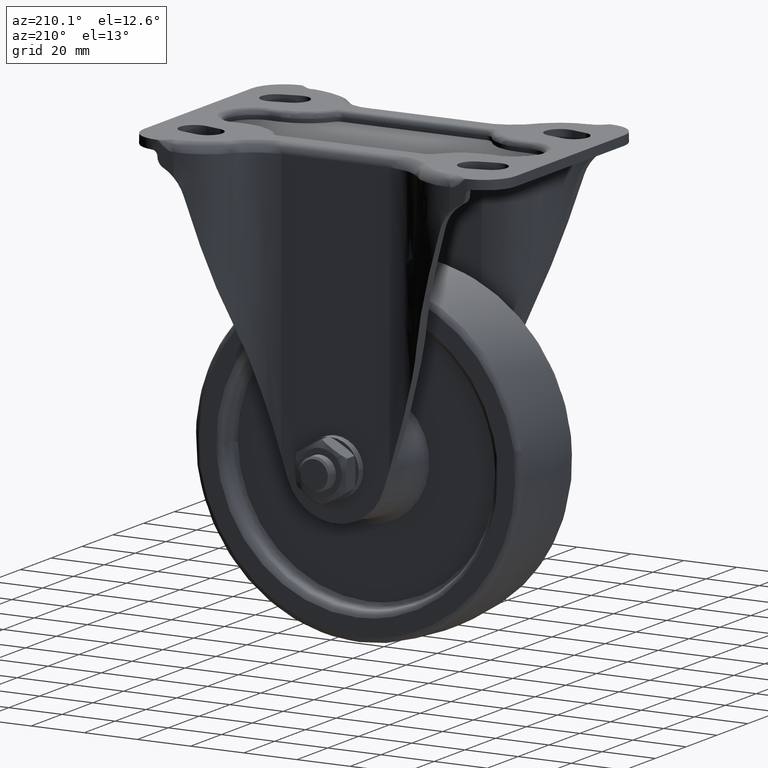
[diagram: clean part render]
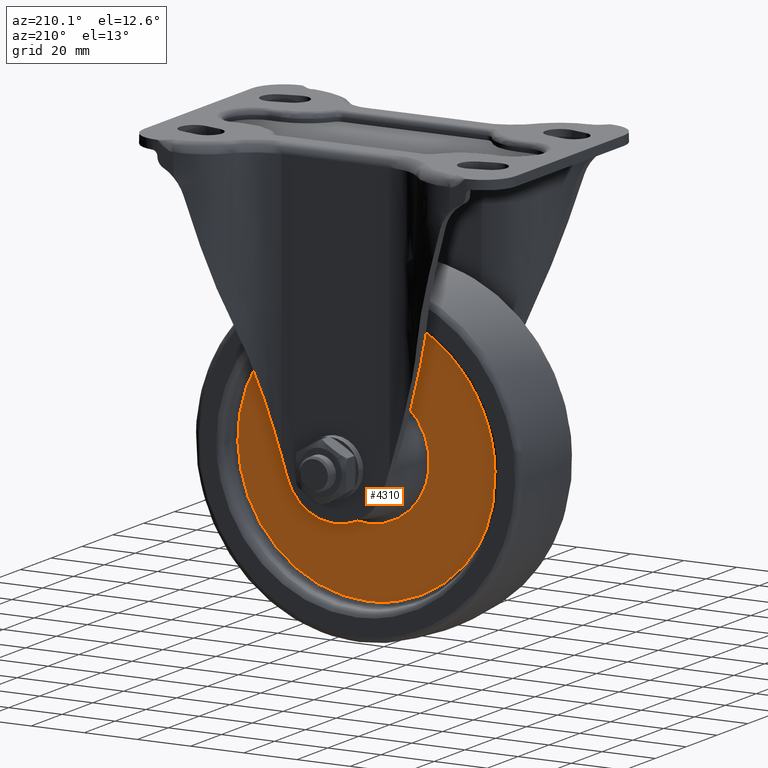
[diagram: same view with one face highlighted and labeled with its STEP entity id]
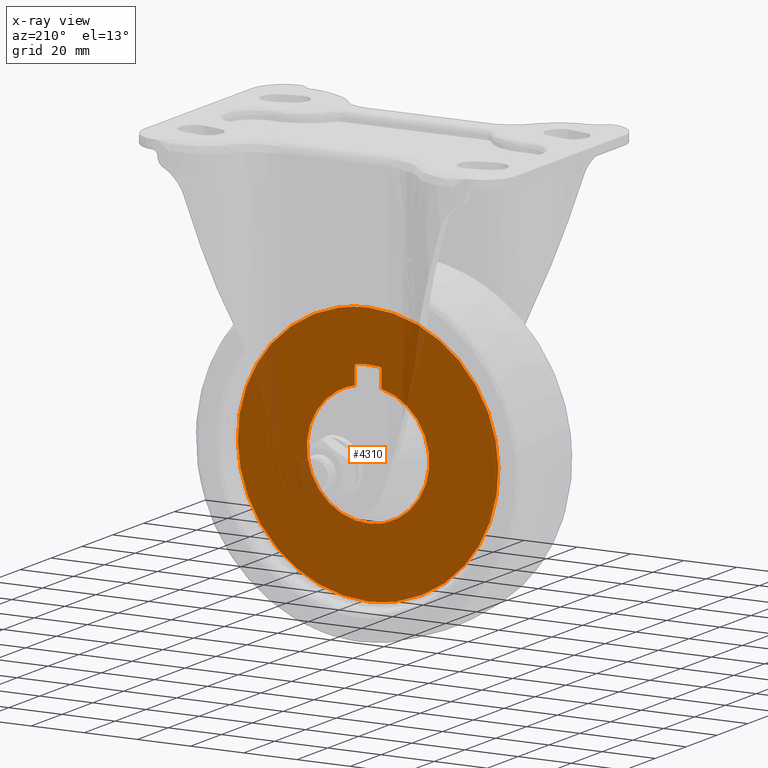
[diagram: x-ray of the same camera — body ghosted, the highlighted face saturated]
A machine part, auxiliary view. The second image highlights one B-rep face of the part: STEP entity #4310.
The next image is the same camera in x-ray: the body ghosted, the highlighted face saturated — about 8% of this face is hidden behind the body in this view.
In plain terms, the highlighted face is a freeform B-spline surface patch.
Its self-contained STEP definition (entity closure, byte-faithful):
#3851=CARTESIAN_POINT('',(-48.984511301841550,10.319397000000000,1.231367326071038));
#3852=VERTEX_POINT('',#3851);
#3853=CARTESIAN_POINT('',(0.0,10.319397000000000,-48.999992999999897));
#3854=VERTEX_POINT('',#3853);
#3855=CARTESIAN_POINT('',(-48.984511301841550,10.319397000000002,1.231367326071038));
#3856=CARTESIAN_POINT('',(-48.999986022415428,10.319396999999999,0.615777398971663));
#3857=CARTESIAN_POINT('',(-48.999986022273717,10.319397000000000,-0.000006999440185));
#3858=CARTESIAN_POINT('',(-48.999986010996800,10.319397000000000,-48.999992999723460));
#3859=CARTESIAN_POINT('',(0.0,10.319397000000000,-48.999992999999897));
#3867=(BOUNDED_CURVE()B_SPLINE_CURVE(2,(#3855,#3856,#3857,#3858,#3859),.UNSPECIFIED.,.F.,.U.)B_SPLINE_CURVE_WITH_KNOTS((3,2,3),(0.745579891767657,0.750000000000000,1.0),.UNSPECIFIED.)CURVE()GEOMETRIC_REPRESENTATION_ITEM()RATIONAL_B_SPLINE_CURVE((0.989826157676716,0.994821521089301,1.0,0.707106781186547,1.0))REPRESENTATION_ITEM(''));
#3868=EDGE_CURVE('',#3852,#3854,#3867,.T.);
#3870=CARTESIAN_POINT('',(48.984511301841550,10.319397000000000,-1.231381326071215));
#3871=VERTEX_POINT('',#3870);
#3872=CARTESIAN_POINT('',(0.0,10.319397000000000,-48.999992999999897));
#3873=CARTESIAN_POINT('',(47.783702291050865,10.319396999999999,-48.999993000283375));
#3874=CARTESIAN_POINT('',(48.984511301841550,10.319396999999999,-1.231381326071215));
#3882=(BOUNDED_CURVE()B_SPLINE_CURVE(2,(#3872,#3873,#3874),.UNSPECIFIED.,.F.,.U.)B_SPLINE_CURVE_WITH_KNOTS((3,3),(0.0,0.245579891767657),.UNSPECIFIED.)CURVE()GEOMETRIC_REPRESENTATION_ITEM()RATIONAL_B_SPLINE_CURVE((1.0,0.712285260097246,0.989826157676716))REPRESENTATION_ITEM(''));
#3883=EDGE_CURVE('',#3854,#3871,#3882,.T.);
#3946=CARTESIAN_POINT('',(0.0,10.319397000000000,48.999978999999712));
#3947=VERTEX_POINT('',#3946);
#3948=CARTESIAN_POINT('',(0.0,10.319397000000000,48.999978999999712));
#3949=CARTESIAN_POINT('',(-47.783702291050851,10.319397000000000,48.999979000283176));
#3950=CARTESIAN_POINT('',(-48.984511301841550,10.319397000000002,1.231367326071038));
#3958=(BOUNDED_CURVE()B_SPLINE_CURVE(2,(#3948,#3949,#3950),.UNSPECIFIED.,.F.,.U.)B_SPLINE_CURVE_WITH_KNOTS((3,3),(0.500000000000000,0.745579891767657),.UNSPECIFIED.)CURVE()GEOMETRIC_REPRESENTATION_ITEM()RATIONAL_B_SPLINE_CURVE((1.0,0.712285260097246,0.989826157676716))REPRESENTATION_ITEM(''));
#3959=EDGE_CURVE('',#3947,#3852,#3958,.T.);
#3966=CARTESIAN_POINT('',(48.984511301841550,10.319396999999999,-1.231381326071215));
#3967=CARTESIAN_POINT('',(48.999986022415435,10.319396999999999,-0.615791398971855));
#3968=CARTESIAN_POINT('',(48.999986022273717,10.319397000000000,-0.000007000560023));
#3969=CARTESIAN_POINT('',(48.999986010996800,10.319396999999999,48.999978999723247));
#3970=CARTESIAN_POINT('',(0.0,10.319397000000000,48.999978999999712));
#3978=(BOUNDED_CURVE()B_SPLINE_CURVE(2,(#3966,#3967,#3968,#3969,#3970),.UNSPECIFIED.,.F.,.U.)B_SPLINE_CURVE_WITH_KNOTS((3,2,3),(0.245579891767657,0.250000000000000,0.500000000000000),.UNSPECIFIED.)CURVE()GEOMETRIC_REPRESENTATION_ITEM()RATIONAL_B_SPLINE_CURVE((0.989826157676716,0.994821521089301,1.0,0.707106781186547,1.0))REPRESENTATION_ITEM(''));
#3979=EDGE_CURVE('',#3871,#3947,#3978,.T.);
#4025=CARTESIAN_POINT('',(-5.0,10.319396999999981,22.481966345770299));
#4026=VERTEX_POINT('',#4025);
#4027=CARTESIAN_POINT('',(5.0,10.319396999999981,22.481966345770299));
#4028=VERTEX_POINT('',#4027);
#4029=CARTESIAN_POINT('',(-5.0,10.319396999999981,22.481966345770299));
#4030=CARTESIAN_POINT('',(-5.085387878252790,10.319396999999981,22.462210359035119));
#4031=CARTESIAN_POINT('',(-5.213693063857245,10.319396999999981,22.433709892424190));
#4032=CARTESIAN_POINT('',(-6.578155796779152,10.319397000000000,22.109839334195140));
#4033=CARTESIAN_POINT('',(-8.540818207425934,10.319396999999940,21.461998359754311));
#4034=CARTESIAN_POINT('',(-11.622457636026899,10.319397000000031,19.973280816300068));
#4035=CARTESIAN_POINT('',(-13.451142400852421,10.319396999999920,18.749516081109380));
#4036=CARTESIAN_POINT('',(-14.605867450475380,10.319397000000000,17.807777145571631));
#4037=CARTESIAN_POINT('',(-14.706821596219291,10.319396999999970,17.723564899808991));
#4038=CARTESIAN_POINT('',(-14.841903140956100,10.319397000000009,17.611841886067030));
#4039=CARTESIAN_POINT('',(-16.077956958325750,10.319396999999890,16.562230134875350));
#4040=CARTESIAN_POINT('',(-17.905369594125109,10.319396999999990,14.654322907823950));
#4041=CARTESIAN_POINT('',(-19.835593529014531,10.319396999999981,11.823372893310371));
#4042=CARTESIAN_POINT('',(-21.255004209016619,10.319396999999970,9.048691311566437));
#4043=CARTESIAN_POINT('',(-22.423413558723521,10.319396999999990,5.732090348997822));
#4044=CARTESIAN_POINT('',(-22.863817172577320,10.319396999999990,3.127883004478196));
#4045=CARTESIAN_POINT('',(-22.972674567379318,10.319396999999981,1.641820032131662));
#4046=CARTESIAN_POINT('',(-22.978149507839209,10.319396999999981,1.554336098784755));
#4047=CARTESIAN_POINT('',(-22.987742020184431,10.319396999999981,1.423198809027324));
#4048=CARTESIAN_POINT('',(-22.994634649496820,10.319396999999981,1.291893901346293));
#4049=CARTESIAN_POINT('',(-23.013921640739419,10.319396999999970,0.941819708415359));
#4050=CARTESIAN_POINT('',(-23.025414809194618,10.319396999999990,0.591363971673138));
#4051=CARTESIAN_POINT('',(-23.030260358920710,10.319396999999981,0.240803172303306));
#4052=CARTESIAN_POINT('',(-23.030476036473079,10.319396999999981,0.109332316829716));
#4053=CARTESIAN_POINT('',(-23.031493707214519,10.319396999999981,-0.022138341027318));
#4054=CARTESIAN_POINT('',(-23.030005973231152,10.319396999999990,-0.372731988136505));
#4055=CARTESIAN_POINT('',(-23.021818019498429,10.319396999999981,-0.723285440606827));
#4056=CARTESIAN_POINT('',(-23.005893724133820,10.319396999999981,-1.073532598914996));
#4057=CARTESIAN_POINT('',(-22.999957428642588,10.319396999999960,-1.204868098159805));
#4058=CARTESIAN_POINT('',(-22.946672157476499,10.319397000000130,-2.167500293492353));
#4059=CARTESIAN_POINT('',(-22.835749040928299,10.319396999999700,-3.126761635757232));
#4060=CARTESIAN_POINT('',(-22.667924397624230,10.319397000000000,-4.076146411155994));
#4061=CARTESIAN_POINT('',(-22.643524306719680,10.319396999999981,-4.205330570320893));
#4062=CARTESIAN_POINT('',(-22.619927648662440,10.319396999999981,-4.334670036394797));
#4063=CARTESIAN_POINT('',(-22.536067230652240,10.319396999999970,-4.764817809044577));
#4064=CARTESIAN_POINT('',(-22.441437565092471,10.319397000000000,-5.192843148538842));
#4065=CARTESIAN_POINT('',(-22.335228144178760,10.319396999999981,-5.618032775469392));
#4066=CARTESIAN_POINT('',(-22.314010329526980,10.319396999999981,-5.703080736037213));
#4067=CARTESIAN_POINT('',(-22.171910645120381,10.319397000000000,-6.254807718150488));
#4068=CARTESIAN_POINT('',(-22.010855487806761,10.319396999999981,-6.801635123550097));
#4069=CARTESIAN_POINT('',(-21.815945253803690,10.319396999999981,-7.383400893766641));
#4070=CARTESIAN_POINT('',(-21.772749832130511,10.319396999999981,-7.507569133948926));
#4071=CARTESIAN_POINT('',(-21.715968581095119,10.319396999999981,-7.673420715178583));
#4072=CARTESIAN_POINT('',(-21.656882861308159,10.319396999999981,-7.838483042006676));
#4073=CARTESIAN_POINT('',(-21.595667708541079,10.319396999999981,-8.002749471605778));
#4074=CARTESIAN_POINT('',(-21.550298959765030,10.319396999999981,-8.126143448985285));
#4075=CARTESIAN_POINT('',(-21.160737661946900,10.319396999999990,-9.150180580126298));
#4076=CARTESIAN_POINT('',(-20.701066936175192,10.319396999999981,-10.147301277188051));
#4077=CARTESIAN_POINT('',(-20.175440191662410,10.319396999999981,-11.108614343984859));
#4078=CARTESIAN_POINT('',(-20.111057803980891,10.319397000000020,-11.223239173327689));
#4079=CARTESIAN_POINT('',(-20.025889442687291,10.319396999999739,-11.376458131663149));
#4080=CARTESIAN_POINT('',(-19.263135153509111,10.319397000000651,-12.707290233369660));
#4081=CARTESIAN_POINT('',(-17.963513623751730,10.319396999999590,-14.537118337972990));
#4082=CARTESIAN_POINT('',(-15.642514350982760,10.319397000000709,-16.992184498985299));
#4083=CARTESIAN_POINT('',(-13.157108320700280,10.319396999999791,-19.022760909032790));
#4084=CARTESIAN_POINT('',(-10.950825606138020,10.319396999999940,-20.301324032533131));
#4085=CARTESIAN_POINT('',(-9.721400025374901,10.319397000000000,-20.879533405309999));
#4086=CARTESIAN_POINT('',(-9.561796878505025,10.319396999999981,-20.952037613935151));
#4087=CARTESIAN_POINT('',(-9.442346509916886,10.319396999999981,-21.006951016560912));
#4088=CARTESIAN_POINT('',(-8.561787640619023,10.319396999999981,-21.399628607863139));
#4089=CARTESIAN_POINT('',(-7.698949925337293,10.319396999999981,-21.724056267608869));
#4090=CARTESIAN_POINT('',(-6.820415811721115,10.319396999999981,-21.998240976886450));
#4091=CARTESIAN_POINT('',(-6.736461432446616,10.319396999999981,-22.023434588719919));
#4092=CARTESIAN_POINT('',(-6.610941342153742,10.319396999999981,-22.062582804533051));
#4093=CARTESIAN_POINT('',(-6.484576630510743,10.319396999999981,-22.098912074927320));
#4094=CARTESIAN_POINT('',(-6.400601600329940,10.319396999999981,-22.124035549714190));
#4095=CARTESIAN_POINT('',(-5.305445384798471,10.319397000000020,-22.438661550428151));
#4096=CARTESIAN_POINT('',(-4.187814688422342,10.319396999999940,-22.674956170331370));
#4097=CARTESIAN_POINT('',(-3.015176477750201,10.319396999999981,-22.833277618409848));
#4098=CARTESIAN_POINT('',(-2.884692110910771,10.319396999999981,-22.849341967039489));
#4099=CARTESIAN_POINT('',(-2.797777032766177,10.319396999999981,-22.860728890155048));
#4100=CARTESIAN_POINT('',(-2.058111653162837,10.319396999999970,-22.949847820064669));
#4101=CARTESIAN_POINT('',(-1.314367329747214,10.319397000000039,-23.005188927102971));
#4102=CARTESIAN_POINT('',(-0.525766660855718,10.319396999999389,-23.025001423799161));
#4103=CARTESIAN_POINT('',(-0.394331204788502,10.319396999994710,-23.028123200891692));
#4104=CARTESIAN_POINT('',(0.657319686157761,10.319397000031520,-23.043045403090769));
#4105=CARTESIAN_POINT('',(1.709734713455762,10.319397000008710,-22.988917765535099));
#4106=CARTESIAN_POINT('',(2.754306874768887,10.319396999998190,-22.866213857908619));
#4107=CARTESIAN_POINT('',(2.884689544322395,10.319396999999601,-22.849350364034990));
#4108=CARTESIAN_POINT('',(3.015178475467962,10.319396999999981,-22.833280592926460));
#4109=CARTESIAN_POINT('',(3.970675288813558,10.319396999999981,-22.704232408351221));
#4110=CARTESIAN_POINT('',(5.995066397368627,10.319396999999981,-22.306331365773261));
#4111=CARTESIAN_POINT('',(9.284635691804775,10.319396999999990,-21.196575414775840));
#4112=CARTESIAN_POINT('',(11.649172709403420,10.319396999999981,-19.924125298243219));
#4113=CARTESIAN_POINT('',(12.956927683201330,10.319396999999990,-19.041476896708090));
#4114=CARTESIAN_POINT('',(13.100923536602750,10.319396999999981,-18.941505719195749));
#4115=CARTESIAN_POINT('',(13.245510044219181,10.319396999999981,-18.842383616928711));
#4116=CARTESIAN_POINT('',(13.387808001036619,10.319396999999981,-18.740001909775810));
#4117=CARTESIAN_POINT('',(13.565991701569040,10.319396999999981,-18.612475297705011));
#4118=CARTESIAN_POINT('',(14.378209618657150,10.319396999999981,-18.015519997178199));
#4119=CARTESIAN_POINT('',(15.927247340403749,10.319396999999990,-16.720219129206601));
#4120=CARTESIAN_POINT('',(18.289667265672371,10.319396999999981,-14.178165663275390));
#4121=CARTESIAN_POINT('',(19.739012965665228,10.319396999999981,-11.968449354299480));
#4122=CARTESIAN_POINT('',(20.484224651578671,10.319396999999981,-10.528292677379071));
#4123=CARTESIAN_POINT('',(20.543359477204898,10.319396999999981,-10.410876015027640));
#4124=CARTESIAN_POINT('',(20.623001007137390,10.319396999999981,-10.254704937332180));
#4125=CARTESIAN_POINT('',(20.719372942984268,10.319396999999981,-10.057898825431611));
#4126=CARTESIAN_POINT('',(20.814394044538890,10.319397000000000,-9.860437273753261));
#4127=CARTESIAN_POINT('',(20.887832951941601,10.319396999999920,-9.701255875803454));
#4128=CARTESIAN_POINT('',(20.943526611526352,10.319397000000190,-9.582169240303488));
#4129=CARTESIAN_POINT('',(21.577706322734169,10.319397000002439,-8.185523376399607));
#4130=CARTESIAN_POINT('',(22.075821359503280,10.319396999992270,-6.727603999635514));
#4131=CARTESIAN_POINT('',(22.428673330572099,10.319397000001359,-5.234849122018520));
#4132=CARTESIAN_POINT('',(22.457447967575281,10.319396999999940,-5.106568904471851));
#4133=CARTESIAN_POINT('',(22.487014812801242,10.319396999999990,-4.978458628016236));
#4134=CARTESIAN_POINT('',(22.561648832075729,10.319396999999960,-4.635898189101585));
#4135=CARTESIAN_POINT('',(22.629774798476969,10.319397000000000,-4.291929081426603));
#4136=CARTESIAN_POINT('',(22.690265893964600,10.319396999999981,-3.946580813644285));
#4137=CARTESIAN_POINT('',(22.712984844410268,10.319396999999981,-3.817086973491113));
#4138=CARTESIAN_POINT('',(22.855673161691350,10.319397000000009,-2.952320453991870));
#4139=CARTESIAN_POINT('',(22.951500839061200,10.319396999999970,-2.079977183926331));
#4140=CARTESIAN_POINT('',(22.999959216263349,10.319396999999981,-1.204864616982420));
#4141=CARTESIAN_POINT('',(23.005676157112319,10.319396999999981,-1.073523535654263));
#4142=CARTESIAN_POINT('',(23.010169519264348,10.319396999999981,-0.985980360706418));
#4143=CARTESIAN_POINT('',(23.024522401033469,10.319396999999981,-0.635679970088231));
#4144=CARTESIAN_POINT('',(23.031986180653799,10.319396999999981,-0.285092052674690));
#4145=CARTESIAN_POINT('',(23.030676790401699,10.319396999999990,0.109328293793037));
#4146=CARTESIAN_POINT('',(23.030440431201828,10.319396999999981,0.196984382734447));
#4147=CARTESIAN_POINT('',(23.025889151040481,10.319396999999970,0.635204951219310));
#4148=CARTESIAN_POINT('',(23.010107578309260,10.319396999999981,1.073315009036060));
#4149=CARTESIAN_POINT('',(22.978454250923789,10.319396999999981,1.554346630039432));
#4150=CARTESIAN_POINT('',(22.969710249132241,10.319396999999981,1.685528795380608));
#4151=CARTESIAN_POINT('',(22.849879828792179,10.319396999999990,3.258698523358617));
#4152=CARTESIAN_POINT('',(22.410114747540799,10.319396999999970,5.729642926588741));
#4153=CARTESIAN_POINT('',(21.295741890284152,10.319396999999981,8.921928200152085));
#4154=CARTESIAN_POINT('',(20.032470785197170,10.319396999999981,11.480809456432031));
#4155=CARTESIAN_POINT('',(18.151828955791661,10.319396999999990,14.343460206683041));
#4156=CARTESIAN_POINT('',(15.258471805578070,10.319396999999990,17.486790703770101));
#4157=CARTESIAN_POINT('',(12.552343641222439,10.319396999999970,19.389908851448219));
#4158=CARTESIAN_POINT('',(10.973982737666381,10.319396999999990,20.248664415810278));
#4159=CARTESIAN_POINT('',(10.896584553528699,10.319396999999981,20.289786495458650));
#4160=CARTESIAN_POINT('',(10.781091396226090,10.319396999999981,20.352630792644909));
#4161=CARTESIAN_POINT('',(10.664225514115021,10.319396999999981,20.412883323308151));
#4162=CARTESIAN_POINT('',(10.547903864642830,10.319396999999981,20.474150379032860));
#4163=CARTESIAN_POINT('',(8.987274387380650,10.319396999999970,21.272599454263450));
#4164=CARTESIAN_POINT('',(7.338008611144181,10.319397000000000,21.896384770951009));
#4165=CARTESIAN_POINT('',(5.639540594572775,10.319396999999981,22.330332995715409));
#4166=CARTESIAN_POINT('',(5.511833184576943,10.319396999999981,22.361545971855001));
#4167=CARTESIAN_POINT('',(5.299128124345785,10.319396999999981,22.414119602900069));
#4168=CARTESIAN_POINT('',(5.128298091991197,10.319396999999990,22.453382563724990));
#4169=CARTESIAN_POINT('',(5.0,10.319396999999981,22.481966345770299));
#4170=B_SPLINE_CURVE_WITH_KNOTS('',3,(#4029,#4030,#4031,#4032,#4033,#4034,#4035,#4036,#4037,#4038,#4039,#4040,#4041,#4042,#4043,#4044,#4045,#4046,#4047,#4048,#4049,#4050,#4051,#4052,#4053,#4054,#4055,#4056,#4057,#4058,#4059,#4060,#4061,#4062,#4063,#4064,#4065,#4066,#4067,#4068,#4069,#4070,#4071,#4072,#4073,#4074,#4075,#4076,#4077,#4078,#4079,#4080,#4081,#4082,#4083,#4084,#4085,#4086,#4087,#4088,#4089,#4090,#4091,#4092,#4093,#4094,#4095,#4096,#4097,#4098,#4099,#4100,#4101,#4102,#4103,#4104,#4105,#4106,#4107,#4108,#4109,#4110,#4111,#4112,#4113,#4114,#4115,#4116,#4117,#4118,#4119,#4120,#4121,#4122,#4123,#4124,#4125,#4126,#4127,#4128,#4129,#4130,#4131,#4132,#4133,#4134,#4135,#4136,#4137,#4138,#4139,#4140,#4141,#4142,#4143,#4144,#4145,#4146,#4147,#4148,#4149,#4150,#4151,#4152,#4153,#4154,#4155,#4156,#4157,#4158,#4159,#4160,#4161,#4162,#4163,#4164,#4165,#4166,#4167,#4168,#4169),.UNSPECIFIED.,.F.,.U.,(4,1,1,1,1,1,1,1,1,1,1,1,1,1,2,1,1,1,1,1,1,1,1,1,1,1,1,1,1,1,1,1,1,1,1,2,1,1,1,1,1,1,1,1,1,1,1,1,1,1,1,1,1,1,1,1,1,2,1,1,1,2,1,1,1,2,1,1,1,1,1,1,1,1,1,1,1,1,1,1,1,1,1,1,1,1,1,1,1,1,1,1,1,1,1,1,1,1,1,1,1,1,1,1,1,1,1,2,1,1,2,1,1,1,1,1,1,1,1,1,2,1,1,1,1,1,1,1,1,1,4),(0.000465741982509,0.263396405070836,0.394756259029123,4.207538981360841,6.442689920889819,10.649851967928440,10.781305402915439,10.912780274170130,11.044255145425060,11.307204807997559,15.777345288223360,18.932734425581302,21.562214961001729,25.112053342831860,29.450691934558819,29.582175196294191,29.713658458029560,29.845139499191191,29.976620540352929,30.765473737694759,30.896912953592022,31.028398327796889,31.159883702001551,31.291333475550619,32.080184496441930,32.211671635716669,32.343158774991487,32.474591598524462,35.103975735651247,35.235409388075851,35.366893469652453,35.498377551228913,35.629828799707028,36.681629209136858,36.813110164705890,36.944591120274943,38.522308011697547,38.653749331634756,38.785227289919888,38.916705248205062,39.179662179330592,39.311140973332563,39.442619767334712,39.574068913218809,42.598018051504113,42.729470347802803,42.860945444308328,42.992420540813683,43.255370596556943,47.462561759715911,49.697630648026120,53.378915506498352,57.060209522964698,57.323160033101203,57.454635315588078,57.586110598074981,57.717561917244353,60.347062494673153,60.478540832977671,60.610019171281927,60.741497232386649,60.872975293491542,64.159858425779191,64.291296054910205,64.422780613502141,64.554265172094105,66.657832237946181,66.789321883555857,66.920811529165420,67.052248003824630,69.944577501650230,70.076016021416649,70.207498427241816,70.338980833066771,70.470437432731359,73.100004031957766,76.518270667361691,80.856973225163784,81.119921559781176,81.251395737426165,81.382869915071097,81.645803173279972,81.777277965466794,82.040228045981735,84.669723420090548,87.825112663587049,92.426738010622145,92.558188100747259,92.689665761355684,92.821143421964024,93.084098486797529,93.347053088100267,93.478530038114002,93.610006988127566,93.741452104203489,98.080154969826992,98.211587366159137,98.343073664886248,98.474559963613615,98.606017369417970,99.394861014592976,99.526348837905587,99.657836661218425,99.789273759527219,102.155716178477700,102.287138488579800,102.418624001716690,102.550109514853600,103.470410293035800,103.601893488039590,103.733376683043300,104.916632559453700,105.048113428284590,105.179594297115600,105.311057112650800,109.781215331988700,112.673641045502190,115.434639076314300,118.327062137149600,122.928693209413100,128.187661560387910,128.319140752185210,128.450619943982500,128.582098570379090,128.713577196775900,128.845033014504510,133.841103325745510,133.972528787373510,134.104019210211700,134.235509633049790,134.629843672030290),.UNSPECIFIED.);
#4171=EDGE_CURVE('',#4026,#4028,#4170,.T.);
#4239=CARTESIAN_POINT('',(-53.895026680194299,10.319396999999981,-53.895091411456917));
#4240=CARTESIAN_POINT('',(-53.895026680194299,10.319396999999981,53.895080040020808));
#4241=CARTESIAN_POINT('',(53.895030183839573,10.319396999999981,-53.895091411456917));
#4242=CARTESIAN_POINT('',(53.895030183839573,10.319396999999981,53.895080040020808));
#4243=B_SPLINE_SURFACE_WITH_KNOTS('',1,1,((#4239,#4241),(#4240,#4242)),.UNSPECIFIED.,.F.,.F.,.U.,(2,2),(2,2),(0.0,107.790171451477700),(0.0,107.790056864033900),.UNSPECIFIED.);
#4244=ORIENTED_EDGE('',*,*,#3868,.F.);
#4245=ORIENTED_EDGE('',*,*,#3959,.F.);
#4246=ORIENTED_EDGE('',*,*,#3979,.F.);
#4247=ORIENTED_EDGE('',*,*,#3883,.F.);
#4248=EDGE_LOOP('',(#4244,#4245,#4246,#4247));
#4249=FACE_OUTER_BOUND('',#4248,.T.);
#4250=CARTESIAN_POINT('',(-5.0,10.319396999999940,28.722798999999799));
#4251=VERTEX_POINT('',#4250);
#4252=CARTESIAN_POINT('',(-5.0,10.319396999999981,22.481966345770299));
#4253=CARTESIAN_POINT('',(-5.0,10.319396999999940,28.722798999999799));
#4254=QUASI_UNIFORM_CURVE('',1,(#4252,#4253),.UNSPECIFIED.,.F.,.U.);
#4255=EDGE_CURVE('',#4026,#4251,#4254,.T.);
#4256=ORIENTED_EDGE('',*,*,#4255,.F.);
#4257=ORIENTED_EDGE('',*,*,#4171,.T.);
#4258=CARTESIAN_POINT('',(4.999999999999941,10.319396999999940,28.722798650933949));
#4259=VERTEX_POINT('',#4258);
#4260=CARTESIAN_POINT('',(4.999999999999941,10.319396999999940,28.722798650933949));
#4261=CARTESIAN_POINT('',(5.0,10.319396999999981,22.481966345770299));
#4262=QUASI_UNIFORM_CURVE('',1,(#4260,#4261),.UNSPECIFIED.,.F.,.U.);
#4263=EDGE_CURVE('',#4259,#4028,#4262,.T.);
#4264=ORIENTED_EDGE('',*,*,#4263,.F.);
#4265=CARTESIAN_POINT('',(4.137931067367354,10.319396999999940,29.713241063720400));
#4266=VERTEX_POINT('',#4265);
#4267=CARTESIAN_POINT('',(4.999999999999940,10.319396999999940,28.722798650933949));
#4268=CARTESIAN_POINT('',(5.000000303822870,10.319396999999940,29.593187236494668));
#4269=CARTESIAN_POINT('',(4.137931035578929,10.319396999999940,29.713240835457150));
#4277=(BOUNDED_CURVE()B_SPLINE_CURVE(2,(#4267,#4268,#4269),.UNSPECIFIED.,.F.,.U.)CURVE()GEOMETRIC_REPRESENTATION_ITEM()QUASI_UNIFORM_CURVE()RATIONAL_B_SPLINE_CURVE((1.0,0.754297915232934,1.0))REPRESENTATION_ITEM(''));
#4278=EDGE_CURVE('',#4259,#4266,#4277,.T.);
#4279=ORIENTED_EDGE('',*,*,#4278,.T.);
#4280=CARTESIAN_POINT('',(-4.137932041139290,10.319396999999940,29.713240695420151));
#4281=VERTEX_POINT('',#4280);
#4282=CARTESIAN_POINT('',(4.137931067367360,10.319396999999940,29.713241063720378));
#4283=CARTESIAN_POINT('',(-0.000000512531097,10.319396999999947,30.289498212335801));
#4284=CARTESIAN_POINT('',(-4.137932072927791,10.319396999999940,29.713240923683880));
#4292=(BOUNDED_CURVE()B_SPLINE_CURVE(2,(#4282,#4283,#4284),.UNSPECIFIED.,.F.,.U.)CURVE()GEOMETRIC_REPRESENTATION_ITEM()QUASI_UNIFORM_CURVE()RATIONAL_B_SPLINE_CURVE((1.0,0.990441833123411,1.0))REPRESENTATION_ITEM(''));
#4293=EDGE_CURVE('',#4266,#4281,#4292,.T.);
#4294=ORIENTED_EDGE('',*,*,#4293,.T.);
#4295=CARTESIAN_POINT('',(-4.137932041139290,10.319396999999940,29.713240695420151));
#4296=CARTESIAN_POINT('',(-5.0,10.319396999999942,29.593186386603946));
#4297=CARTESIAN_POINT('',(-5.0,10.319396999999940,28.722798999999799));
#4305=(BOUNDED_CURVE()B_SPLINE_CURVE(2,(#4295,#4296,#4297),.UNSPECIFIED.,.F.,.U.)CURVE()GEOMETRIC_REPRESENTATION_ITEM()QUASI_UNIFORM_CURVE()RATIONAL_B_SPLINE_CURVE((1.0,0.754298363096225,1.0))REPRESENTATION_ITEM(''));
#4306=EDGE_CURVE('',#4281,#4251,#4305,.T.);
#4307=ORIENTED_EDGE('',*,*,#4306,.T.);
#4308=EDGE_LOOP('',(#4256,#4257,#4264,#4279,#4294,#4307));
#4309=FACE_BOUND('',#4308,.T.);
#4310=ADVANCED_FACE('',(#4249,#4309),#4243,.T.);